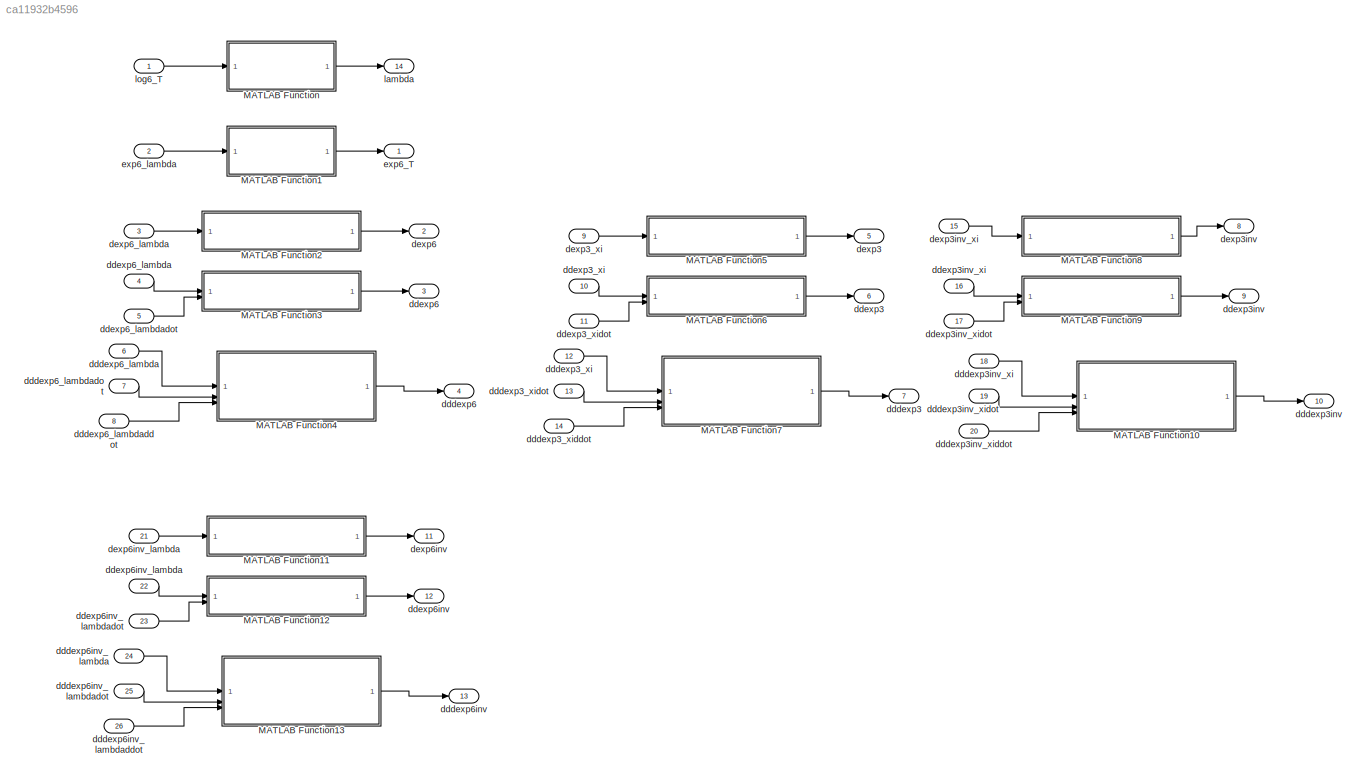
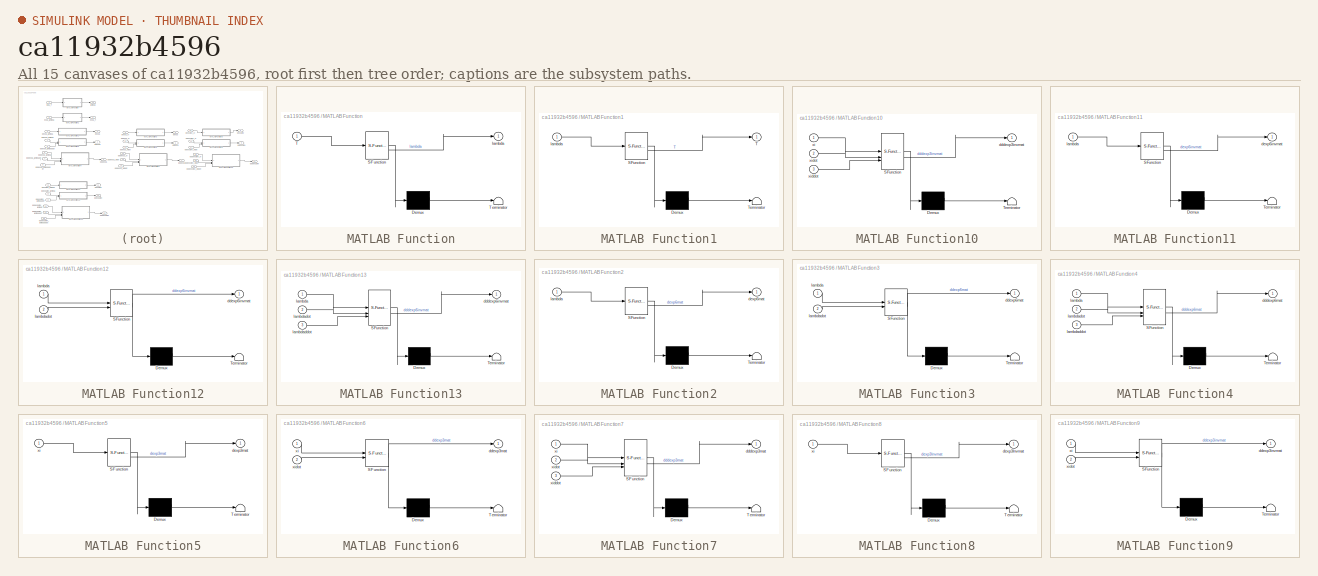
[diagram: thumbnail index - all 15 canvases of the model, root first then tree order]
MODEL slx_ca11932b4596
KIND model
CONFIG AbsTol = auto
CONFIG EnableMultiTasking = off
CONFIG FixedStep = 0.001
CONFIG MaxStep = auto
CONFIG MinStep = auto
CONFIG RelTol = 1e-3
CONFIG SampleTimeConstraint = Unconstrained
CONFIG SolverName = FixedStepAuto
CONFIG StartTime = 0.0
CONFIG StopTime = Inf
BLOCK [SubSystem] MATLAB Function
  ErrorFcn = Stateflow.Translate.translate
  PermitHierarchicalResolution = ExplicitOnly
  SFBlockType = MATLAB Function
  TreatAsAtomicUnit = on
BLOCK [Demux] MATLAB Function/ Demux 
  Outputs = 1
BLOCK [S-Function] MATLAB Function/ SFunction 
  EnableBusSupport = on
  FunctionName = sf_sfun
  PortCounts = [1 2]
  SFcnIsStateOwnerBlock = off
  SFunctionDeploymentMode = off
  Tag = Stateflow S-Function 2
BLOCK [Terminator] MATLAB Function/ Terminator 
BLOCK [Inport] MATLAB Function/T
BLOCK [Outport] MATLAB Function/lambda
BLOCK [SubSystem] MATLAB Function1
  ErrorFcn = Stateflow.Translate.translate
  PermitHierarchicalResolution = ExplicitOnly
  SFBlockType = MATLAB Function
  TreatAsAtomicUnit = on
BLOCK [Demux] MATLAB Function1/ Demux 
  Outputs = 1
BLOCK [S-Function] MATLAB Function1/ SFunction 
  EnableBusSupport = on
  FunctionName = sf_sfun
  PortCounts = [1 2]
  SFcnIsStateOwnerBlock = off
  SFunctionDeploymentMode = off
  Tag = Stateflow S-Function 1
BLOCK [Terminator] MATLAB Function1/ Terminator 
BLOCK [Outport] MATLAB Function1/T
BLOCK [Inport] MATLAB Function1/lambda
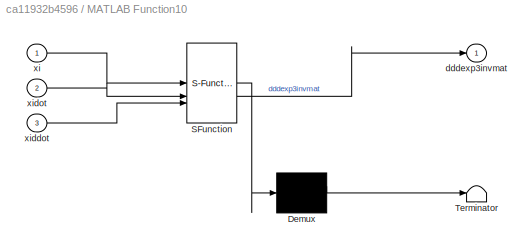
BLOCK [SubSystem] MATLAB Function10
  ErrorFcn = Stateflow.Translate.translate
  PermitHierarchicalResolution = ExplicitOnly
  SFBlockType = MATLAB Function
  TreatAsAtomicUnit = on
BLOCK [Demux] MATLAB Function10/ Demux 
  Outputs = 1
BLOCK [S-Function] MATLAB Function10/ SFunction 
  EnableBusSupport = on
  FunctionName = sf_sfun
  PortCounts = [3 2]
  SFcnIsStateOwnerBlock = off
  SFunctionDeploymentMode = off
  Tag = Stateflow S-Function 11
BLOCK [Terminator] MATLAB Function10/ Terminator 
BLOCK [Outport] MATLAB Function10/dddexp3invmat
BLOCK [Inport] MATLAB Function10/xi
BLOCK [Inport] MATLAB Function10/xiddot
  Port = 3
BLOCK [Inport] MATLAB Function10/xidot
  Port = 2
BLOCK [SubSystem] MATLAB Function11
  ErrorFcn = Stateflow.Translate.translate
  PermitHierarchicalResolution = ExplicitOnly
  SFBlockType = MATLAB Function
  TreatAsAtomicUnit = on
BLOCK [Demux] MATLAB Function11/ Demux 
  Outputs = 1
BLOCK [S-Function] MATLAB Function11/ SFunction 
  EnableBusSupport = on
  FunctionName = sf_sfun
  PortCounts = [1 2]
  SFcnIsStateOwnerBlock = off
  SFunctionDeploymentMode = off
  Tag = Stateflow S-Function 12
BLOCK [Terminator] MATLAB Function11/ Terminator 
BLOCK [Outport] MATLAB Function11/dexp6invmat
BLOCK [Inport] MATLAB Function11/lambda
BLOCK [SubSystem] MATLAB Function12
  ErrorFcn = Stateflow.Translate.translate
  PermitHierarchicalResolution = ExplicitOnly
  SFBlockType = MATLAB Function
  TreatAsAtomicUnit = on
BLOCK [Demux] MATLAB Function12/ Demux 
  Outputs = 1
BLOCK [S-Function] MATLAB Function12/ SFunction 
  EnableBusSupport = on
  FunctionName = sf_sfun
  PortCounts = [2 2]
  SFcnIsStateOwnerBlock = off
  SFunctionDeploymentMode = off
  Tag = Stateflow S-Function 13
BLOCK [Terminator] MATLAB Function12/ Terminator 
BLOCK [Outport] MATLAB Function12/ddexp6invmat
BLOCK [Inport] MATLAB Function12/lambda
BLOCK [Inport] MATLAB Function12/lambdadot
  Port = 2
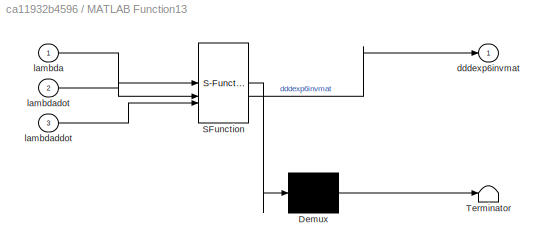
BLOCK [SubSystem] MATLAB Function13
  ErrorFcn = Stateflow.Translate.translate
  PermitHierarchicalResolution = ExplicitOnly
  SFBlockType = MATLAB Function
  TreatAsAtomicUnit = on
BLOCK [Demux] MATLAB Function13/ Demux 
  Outputs = 1
BLOCK [S-Function] MATLAB Function13/ SFunction 
  EnableBusSupport = on
  FunctionName = sf_sfun
  PortCounts = [3 2]
  SFcnIsStateOwnerBlock = off
  SFunctionDeploymentMode = off
  Tag = Stateflow S-Function 14
BLOCK [Terminator] MATLAB Function13/ Terminator 
BLOCK [Outport] MATLAB Function13/dddexp6invmat
BLOCK [Inport] MATLAB Function13/lambda
BLOCK [Inport] MATLAB Function13/lambdaddot
  Port = 3
BLOCK [Inport] MATLAB Function13/lambdadot
  Port = 2
BLOCK [SubSystem] MATLAB Function2
  ErrorFcn = Stateflow.Translate.translate
  PermitHierarchicalResolution = ExplicitOnly
  SFBlockType = MATLAB Function
  TreatAsAtomicUnit = on
BLOCK [Demux] MATLAB Function2/ Demux 
  Outputs = 1
BLOCK [S-Function] MATLAB Function2/ SFunction 
  EnableBusSupport = on
  FunctionName = sf_sfun
  PortCounts = [1 2]
  SFcnIsStateOwnerBlock = off
  SFunctionDeploymentMode = off
  Tag = Stateflow S-Function 3
BLOCK [Terminator] MATLAB Function2/ Terminator 
BLOCK [Outport] MATLAB Function2/dexp6mat
BLOCK [Inport] MATLAB Function2/lambda
BLOCK [SubSystem] MATLAB Function3
  ErrorFcn = Stateflow.Translate.translate
  PermitHierarchicalResolution = ExplicitOnly
  SFBlockType = MATLAB Function
  TreatAsAtomicUnit = on
BLOCK [Demux] MATLAB Function3/ Demux 
  Outputs = 1
BLOCK [S-Function] MATLAB Function3/ SFunction 
  EnableBusSupport = on
  FunctionName = sf_sfun
  PortCounts = [2 2]
  SFcnIsStateOwnerBlock = off
  SFunctionDeploymentMode = off
  Tag = Stateflow S-Function 4
BLOCK [Terminator] MATLAB Function3/ Terminator 
BLOCK [Outport] MATLAB Function3/ddexp6mat
BLOCK [Inport] MATLAB Function3/lambda
BLOCK [Inport] MATLAB Function3/lambdadot
  Port = 2
BLOCK [SubSystem] MATLAB Function4
  ErrorFcn = Stateflow.Translate.translate
  PermitHierarchicalResolution = ExplicitOnly
  SFBlockType = MATLAB Function
  TreatAsAtomicUnit = on
BLOCK [Demux] MATLAB Function4/ Demux 
  Outputs = 1
BLOCK [S-Function] MATLAB Function4/ SFunction 
  EnableBusSupport = on
  FunctionName = sf_sfun
  PortCounts = [3 2]
  SFcnIsStateOwnerBlock = off
  SFunctionDeploymentMode = off
  Tag = Stateflow S-Function 5
BLOCK [Terminator] MATLAB Function4/ Terminator 
BLOCK [Outport] MATLAB Function4/dddexp6mat
BLOCK [Inport] MATLAB Function4/lambda
BLOCK [Inport] MATLAB Function4/lambdaddot
  Port = 3
BLOCK [Inport] MATLAB Function4/lambdadot
  Port = 2
BLOCK [SubSystem] MATLAB Function5
  ErrorFcn = Stateflow.Translate.translate
  PermitHierarchicalResolution = ExplicitOnly
  SFBlockType = MATLAB Function
  TreatAsAtomicUnit = on
BLOCK [Demux] MATLAB Function5/ Demux 
  Outputs = 1
BLOCK [S-Function] MATLAB Function5/ SFunction 
  EnableBusSupport = on
  FunctionName = sf_sfun
  PortCounts = [1 2]
  SFcnIsStateOwnerBlock = off
  SFunctionDeploymentMode = off
  Tag = Stateflow S-Function 6
BLOCK [Terminator] MATLAB Function5/ Terminator 
BLOCK [Outport] MATLAB Function5/dexp3mat
BLOCK [Inport] MATLAB Function5/xi
BLOCK [SubSystem] MATLAB Function6
  ErrorFcn = Stateflow.Translate.translate
  PermitHierarchicalResolution = ExplicitOnly
  SFBlockType = MATLAB Function
  TreatAsAtomicUnit = on
BLOCK [Demux] MATLAB Function6/ Demux 
  Outputs = 1
BLOCK [S-Function] MATLAB Function6/ SFunction 
  EnableBusSupport = on
  FunctionName = sf_sfun
  PortCounts = [2 2]
  SFcnIsStateOwnerBlock = off
  SFunctionDeploymentMode = off
  Tag = Stateflow S-Function 7
BLOCK [Terminator] MATLAB Function6/ Terminator 
BLOCK [Outport] MATLAB Function6/ddexp3mat
BLOCK [Inport] MATLAB Function6/xi
BLOCK [Inport] MATLAB Function6/xidot
  Port = 2
BLOCK [SubSystem] MATLAB Function7
  ErrorFcn = Stateflow.Translate.translate
  PermitHierarchicalResolution = ExplicitOnly
  SFBlockType = MATLAB Function
  TreatAsAtomicUnit = on
BLOCK [Demux] MATLAB Function7/ Demux 
  Outputs = 1
BLOCK [S-Function] MATLAB Function7/ SFunction 
  EnableBusSupport = on
  FunctionName = sf_sfun
  PortCounts = [3 2]
  SFcnIsStateOwnerBlock = off
  SFunctionDeploymentMode = off
  Tag = Stateflow S-Function 8
BLOCK [Terminator] MATLAB Function7/ Terminator 
BLOCK [Outport] MATLAB Function7/dddexp3mat
BLOCK [Inport] MATLAB Function7/xi
BLOCK [Inport] MATLAB Function7/xiddot
  Port = 3
BLOCK [Inport] MATLAB Function7/xidot
  Port = 2
BLOCK [SubSystem] MATLAB Function8
  ErrorFcn = Stateflow.Translate.translate
  PermitHierarchicalResolution = ExplicitOnly
  SFBlockType = MATLAB Function
  TreatAsAtomicUnit = on
BLOCK [Demux] MATLAB Function8/ Demux 
  Outputs = 1
BLOCK [S-Function] MATLAB Function8/ SFunction 
  EnableBusSupport = on
  FunctionName = sf_sfun
  PortCounts = [1 2]
  SFcnIsStateOwnerBlock = off
  SFunctionDeploymentMode = off
  Tag = Stateflow S-Function 9
BLOCK [Terminator] MATLAB Function8/ Terminator 
BLOCK [Outport] MATLAB Function8/dexp3Invmat
BLOCK [Inport] MATLAB Function8/xi
BLOCK [SubSystem] MATLAB Function9
  ErrorFcn = Stateflow.Translate.translate
  PermitHierarchicalResolution = ExplicitOnly
  SFBlockType = MATLAB Function
  TreatAsAtomicUnit = on
BLOCK [Demux] MATLAB Function9/ Demux 
  Outputs = 1
BLOCK [S-Function] MATLAB Function9/ SFunction 
  EnableBusSupport = on
  FunctionName = sf_sfun
  PortCounts = [2 2]
  SFcnIsStateOwnerBlock = off
  SFunctionDeploymentMode = off
  Tag = Stateflow S-Function 10
BLOCK [Terminator] MATLAB Function9/ Terminator 
BLOCK [Outport] MATLAB Function9/ddexp3invmat
BLOCK [Inport] MATLAB Function9/xi
BLOCK [Inport] MATLAB Function9/xidot
  Port = 2
BLOCK [Outport] dddexp3
  Port = 7
  PortDimensions = [3,3]
BLOCK [Inport] dddexp3_xi
  Port = 12
  PortDimensions = 3
BLOCK [Inport] dddexp3_xiddot
  Port = 14
  PortDimensions = 3
BLOCK [Inport] dddexp3_xidot
  Port = 13
  PortDimensions = 3
BLOCK [Outport] dddexp3inv
  Port = 10
  PortDimensions = [3,3]
BLOCK [Inport] dddexp3inv_xi
  Port = 18
  PortDimensions = 3
BLOCK [Inport] dddexp3inv_xiddot
  Port = 20
  PortDimensions = 3
BLOCK [Inport] dddexp3inv_xidot
  Port = 19
  PortDimensions = 3
BLOCK [Outport] dddexp6
  Port = 4
  PortDimensions = [6,6]
BLOCK [Inport] dddexp6_lambda
  Port = 6
  PortDimensions = 6
BLOCK [Inport] dddexp6_lambdaddot
  Port = 8
  PortDimensions = 6
BLOCK [Inport] dddexp6_lambdadot
  Port = 7
  PortDimensions = 6
BLOCK [Outport] dddexp6inv
  Port = 13
  PortDimensions = [6,6]
BLOCK [Inport] dddexp6inv_lambda
  Port = 24
  PortDimensions = 6
BLOCK [Inport] dddexp6inv_lambdaddot
  Port = 26
  PortDimensions = 6
BLOCK [Inport] dddexp6inv_lambdadot
  Port = 25
  PortDimensions = 6
BLOCK [Outport] ddexp3
  Port = 6
  PortDimensions = [3,3]
BLOCK [Inport] ddexp3_xi
  Port = 10
  PortDimensions = 3
BLOCK [Inport] ddexp3_xidot
  Port = 11
  PortDimensions = 3
BLOCK [Outport] ddexp3inv
  Port = 9
  PortDimensions = [3,3]
BLOCK [Inport] ddexp3inv_xi
  Port = 16
  PortDimensions = 3
BLOCK [Inport] ddexp3inv_xidot
  Port = 17
  PortDimensions = 3
BLOCK [Outport] ddexp6
  Port = 3
  PortDimensions = [6,6]
BLOCK [Inport] ddexp6_lambda
  Port = 4
  PortDimensions = 6
BLOCK [Inport] ddexp6_lambdadot
  Port = 5
  PortDimensions = 6
BLOCK [Outport] ddexp6inv
  Port = 12
  PortDimensions = [6,6]
BLOCK [Inport] ddexp6inv_lambda
  Port = 22
  PortDimensions = 6
BLOCK [Inport] ddexp6inv_lambdadot
  Port = 23
  PortDimensions = 6
BLOCK [Outport] dexp3
  Port = 5
  PortDimensions = [3,3]
BLOCK [Inport] dexp3_xi
  Port = 9
  PortDimensions = 3
BLOCK [Outport] dexp3inv
  Port = 8
  PortDimensions = [3,3]
BLOCK [Inport] dexp3inv_xi
  Port = 15
  PortDimensions = 6
BLOCK [Outport] dexp6
  Port = 2
  PortDimensions = [6,6]
BLOCK [Inport] dexp6_lambda
  Port = 3
  PortDimensions = 6
BLOCK [Outport] dexp6inv
  Port = 11
  PortDimensions = [6,6]
BLOCK [Inport] dexp6inv_lambda
  Port = 21
  PortDimensions = 6
BLOCK [Outport] exp6_T
  PortDimensions = [4,4]
BLOCK [Inport] exp6_lambda
  Port = 2
  PortDimensions = 6
BLOCK [Outport] lambda
  Port = 14
  PortDimensions = 6
BLOCK [Inport] log6_T
  PortDimensions = [4,4]
LINE MATLAB Function10:1 -> dddexp3inv:1
LINE MATLAB Function11:1 -> dexp6inv:1
LINE MATLAB Function12:1 -> ddexp6inv:1
LINE MATLAB Function13:1 -> dddexp6inv:1
LINE MATLAB Function1:1 -> exp6_T:1
LINE MATLAB Function2:1 -> dexp6:1
LINE MATLAB Function3:1 -> ddexp6:1
LINE MATLAB Function4:1 -> dddexp6:1
LINE MATLAB Function5:1 -> dexp3:1
LINE MATLAB Function6:1 -> ddexp3:1
LINE MATLAB Function7:1 -> dddexp3:1
LINE MATLAB Function8:1 -> dexp3inv:1
LINE MATLAB Function9:1 -> ddexp3inv:1
LINE MATLAB Function:1 -> lambda:1
LINE dddexp3_xi:1 -> MATLAB Function7:1
LINE dddexp3_xiddot:1 -> MATLAB Function7:3
LINE dddexp3_xidot:1 -> MATLAB Function7:2
LINE dddexp3inv_xi:1 -> MATLAB Function10:1
LINE dddexp3inv_xiddot:1 -> MATLAB Function10:3
LINE dddexp3inv_xidot:1 -> MATLAB Function10:2
LINE dddexp6_lambda:1 -> MATLAB Function4:1
LINE dddexp6_lambdaddot:1 -> MATLAB Function4:3
LINE dddexp6_lambdadot:1 -> MATLAB Function4:2
LINE dddexp6inv_lambda:1 -> MATLAB Function13:1
LINE dddexp6inv_lambdaddot:1 -> MATLAB Function13:3
LINE dddexp6inv_lambdadot:1 -> MATLAB Function13:2
LINE ddexp3_xi:1 -> MATLAB Function6:1
LINE ddexp3_xidot:1 -> MATLAB Function6:2
LINE ddexp3inv_xi:1 -> MATLAB Function9:1
LINE ddexp3inv_xidot:1 -> MATLAB Function9:2
LINE ddexp6_lambda:1 -> MATLAB Function3:1
LINE ddexp6_lambdadot:1 -> MATLAB Function3:2
LINE ddexp6inv_lambda:1 -> MATLAB Function12:1
LINE ddexp6inv_lambdadot:1 -> MATLAB Function12:2
LINE dexp3_xi:1 -> MATLAB Function5:1
LINE dexp3inv_xi:1 -> MATLAB Function8:1
LINE dexp6_lambda:1 -> MATLAB Function2:1
LINE dexp6inv_lambda:1 -> MATLAB Function11:1
LINE exp6_lambda:1 -> MATLAB Function1:1
LINE log6_T:1 -> MATLAB Function:1
CHART MATLAB Function12 states=1 transitions=1
  STATE_LABEL 'eML_blk_kernel()'
  STATE_LABEL 'SCRIPT:\nfunction ddexp6invmat = ddexp6inv(lambda,lambdadot)\n\nddexp6invmat = ddlog6(lambda,lambdadot);\n'
CHART MATLAB Function13 states=1 transitions=1
  STATE_LABEL 'eML_blk_kernel()'
  STATE_LABEL 'SCRIPT:\nfunction dddexp6invmat = dddexp6inv(lambda,lambdadot,lambdaddot)\n\ndddexp6invmat = dddlog6(lambda,lambdadot,lambdaddot);\n'
CHART MATLAB Function states=1 transitions=1
  STATE_LABEL 'eML_blk_kernel()'
  STATE_LABEL 'SCRIPT:\nfunction lambda = log6(T)\nif(norm(T) <eps) T= eye(4);\nend\nlambda = log6(T);\n'
CHART MATLAB Function2 states=1 transitions=1
  STATE_LABEL 'eML_blk_kernel()'
  STATE_LABEL 'SCRIPT:\nfunction dexp6mat = dexp6(lambda)\n\ndexp6mat = dexp6(lambda);\n'
CHART MATLAB Function3 states=1 transitions=1
  STATE_LABEL 'eML_blk_kernel()'
  STATE_LABEL 'SCRIPT:\nfunction ddexp6mat = ddexp6(lambda,lambdadot)\n\nddexp6mat = ddexp6(lambda,lambdadot);\n'
CHART MATLAB Function4 states=1 transitions=1
  STATE_LABEL 'eML_blk_kernel()'
  STATE_LABEL 'SCRIPT:\nfunction dddexp6mat = dddexp6(lambda,lambdadot,lambdaddot)\n\ndddexp6mat = dddexp6(lambda,lambdadot,lambdaddot);\n'
CHART MATLAB Function5 states=1 transitions=1
  STATE_LABEL 'eML_blk_kernel()'
  STATE_LABEL 'SCRIPT:\nfunction dexp3mat = dexp3(xi)\n\ndexp3mat = dexp3(xi);\n'
CHART MATLAB Function6 states=1 transitions=1
  STATE_LABEL 'eML_blk_kernel()'
  STATE_LABEL 'SCRIPT:\nfunction ddexp3mat = ddexp3(xi,xidot)\n\nddexp3mat = ddexp3(xi,xidot);\n'
CHART MATLAB Function7 states=1 transitions=1
  STATE_LABEL 'eML_blk_kernel()'
  STATE_LABEL 'SCRIPT:\nfunction dddexp3mat = dddexp3(xi,xidot,xiddot)\n\ndddexp3mat = dddexp3(xi,xidot,xiddot);\n'
CHART MATLAB Function8 states=1 transitions=1
  STATE_LABEL 'eML_blk_kernel()'
  STATE_LABEL 'SCRIPT:\nfunction dexp3Invmat = dexp3Inv(xi)\n\ndexp3Invmat = dlog3(xi);\n'
CHART MATLAB Function9 states=1 transitions=1
  STATE_LABEL 'eML_blk_kernel()'
  STATE_LABEL 'SCRIPT:\nfunction ddexp3invmat = ddexp3inv(xi,xidot)\n\nddexp3invmat = ddlog3(xi,xidot);\n'
CHART MATLAB Function10 states=1 transitions=1
  STATE_LABEL 'eML_blk_kernel()'
  STATE_LABEL 'SCRIPT:\nfunction dddexp3invmat = dddexp3inv(xi,xidot,xiddot)\n\ndddexp3invmat = dddlog3(xi,xidot,xiddot);\n'
CHART MATLAB Function1 states=1 transitions=1
  STATE_LABEL 'eML_blk_kernel()'
  STATE_LABEL 'SCRIPT:\nfunction T = exp6(lambda)\n\nT = exp6(lambda);\n'
CHART MATLAB Function11 states=1 transitions=1
  STATE_LABEL 'eML_blk_kernel()'
  STATE_LABEL 'SCRIPT:\nfunction dexp6invmat = dexp6inv(lambda)\n\ndexp6invmat = dlog6(lambda);\n'
CHART  states=0 transitions=0
CHART  states=0 transitions=0
CHART  states=0 transitions=0
CHART  states=0 transitions=0
CHART  states=0 transitions=0
CHART  states=0 transitions=0
CHART  states=0 transitions=0
CHART  states=0 transitions=0
CHART  states=0 transitions=0
CHART  states=0 transitions=0
CHART  states=0 transitions=0
CHART  states=0 transitions=0
CHART  states=0 transitions=0
CHART  states=0 transitions=0
